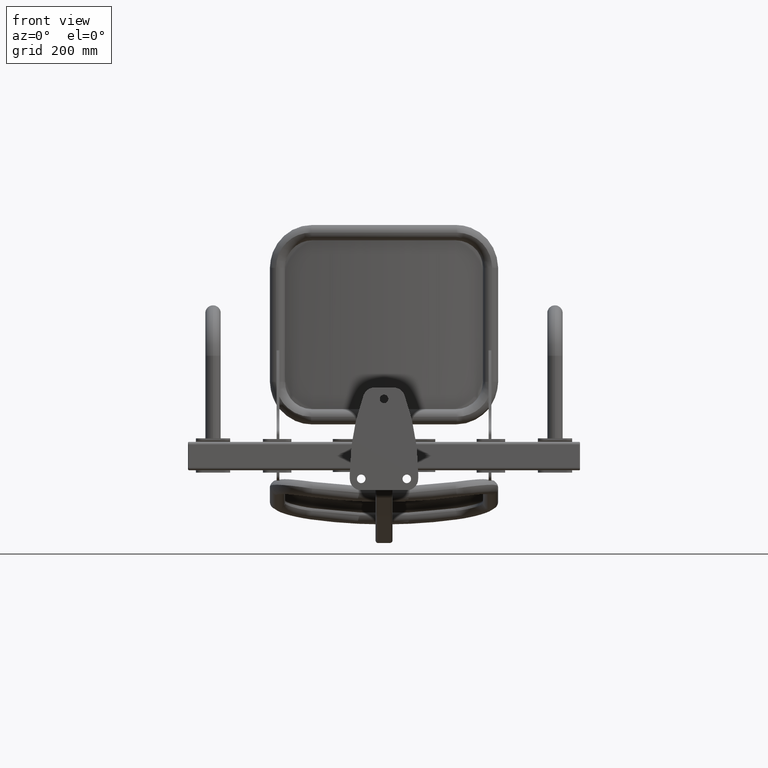
[diagram: clean part render]
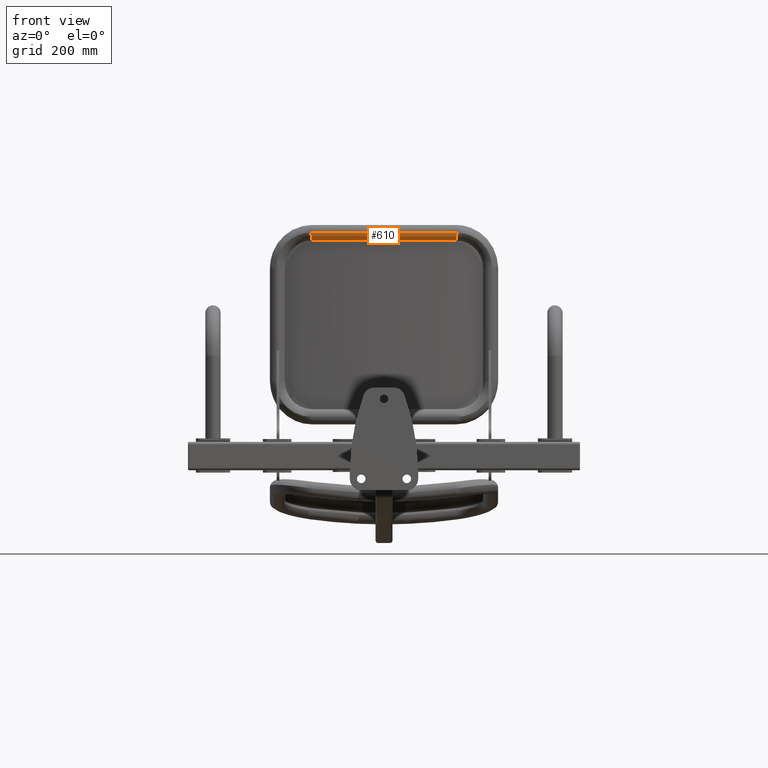
[diagram: same view with one face highlighted and labeled with its STEP entity id]
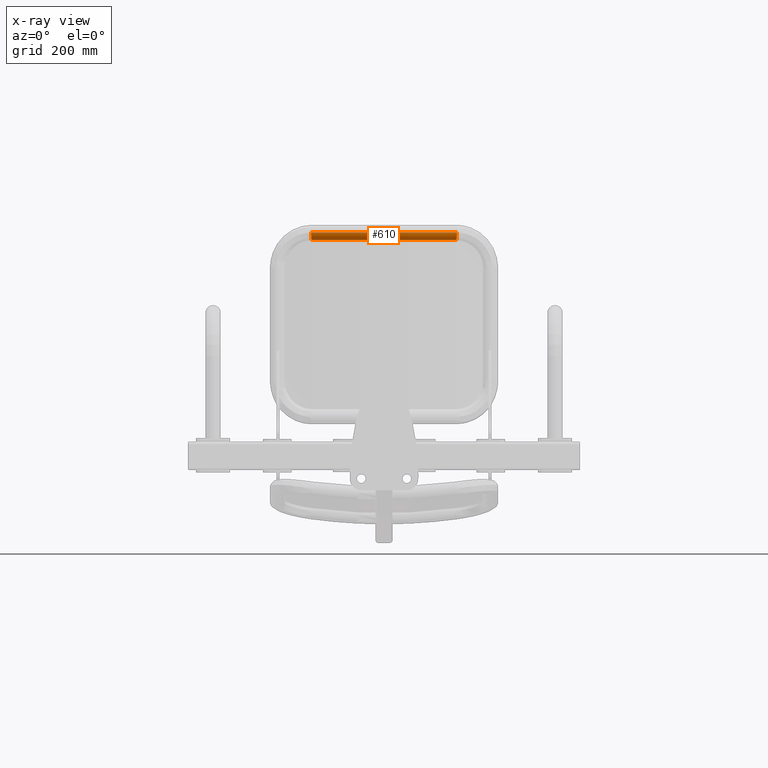
[diagram: x-ray of the same camera — body ghosted, the highlighted face saturated]
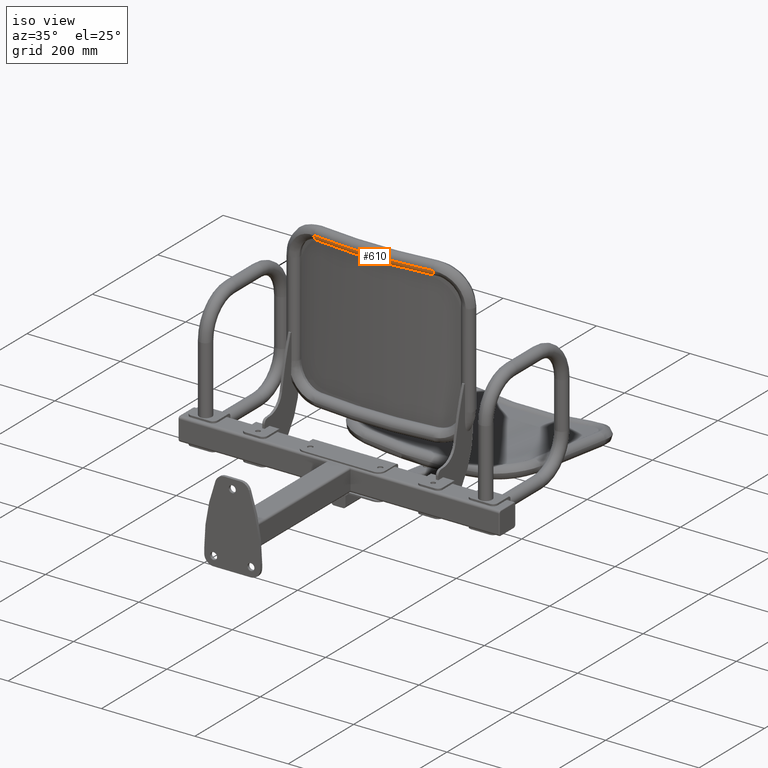
[diagram: same view with one face highlighted and labeled with its STEP entity id]
A machine part, front view. The second image highlights one B-rep face of the part: STEP entity #610.
The next image is the same camera in x-ray: the body ghosted, the highlighted face saturated — about 0% of this face is hidden behind the body in this view.
A second angle (iso view) of the same face is appended — the face is thin or edge-on in the first view.
In plain terms, the highlighted toroidal blend (fillet) surface has major radius 930 mm and minor (blend) radius 13.45 mm.
Its self-contained STEP definition (entity closure, byte-faithful):
#610 = ADVANCED_FACE ( 'NONE', ( #6414 ), #6413, .T. ) ;
#799 = CIRCLE ( 'NONE', #15535, 13.45000000000000300 ) ;
#802 = CIRCLE ( 'NONE', #15540, 13.44999999999999900 ) ;
#803 = CIRCLE ( 'NONE', #15539, 943.4500000000001600 ) ;
#2666 = EDGE_LOOP ( 'NONE', ( #6727, #6728, #6729, #6730 ) ) ;
#4079 = CARTESIAN_POINT ( 'NONE',  ( 0.0000000000000000000, 908.2400563727633200, 148.1000000000000200 ) ) ;
#4080 = DIRECTION ( 'NONE',  ( 0.0000000000000000000, 0.0000000000000000000, 1.000000000000000000 ) ) ;
#4081 = DIRECTION ( 'NONE',  ( 1.000000000000000000, 0.0000000000000000000, 0.0000000000000000000 ) ) ;
#5103 = DIRECTION ( 'NONE',  ( 0.0000000000000000000, 0.0000000000000000000, 1.000000000000000000 ) ) ;
#5255 = CARTESIAN_POINT ( 'NONE',  ( 0.0000000000000000000, 908.2400563727633200, 161.5500000000000100 ) ) ;
#5259 = DIRECTION ( 'NONE',  ( 1.000000000000000000, 0.0000000000000000000, 0.0000000000000000000 ) ) ;
#6413 = TOROIDAL_SURFACE ( 'NONE', #8609, 930.0000000000001100, 13.44999999999999900 ) ;
#6414 = FACE_OUTER_BOUND ( 'NONE', #2666, .T. ) ;
#6727 = ORIENTED_EDGE ( 'NONE', *, *, #15403, .T. ) ;
#6728 = ORIENTED_EDGE ( 'NONE', *, *, #15410, .F. ) ;
#6729 = ORIENTED_EDGE ( 'NONE', *, *, #15411, .F. ) ;
#6730 = ORIENTED_EDGE ( 'NONE', *, *, #15049, .T. ) ;
#7198 = CARTESIAN_POINT ( 'NONE',  ( 127.9271626772452800, -26.49656083518033600, 161.5500000000000100 ) ) ;
#7219 = CARTESIAN_POINT ( 'NONE',  ( 126.1034090729112600, -13.17078045312857700, 148.1000000000000200 ) ) ;
#7638 = CIRCLE ( 'NONE', #15483, 930.0000000000001100 ) ;
#8609 = AXIS2_PLACEMENT_3D ( 'NONE', #5255, #5103, #5259 ) ;
#11580 = VERTEX_POINT ( 'NONE', #14313 ) ;
#11585 = VERTEX_POINT ( 'NONE', #14318 ) ;
#11823 = VERTEX_POINT ( 'NONE', #7198 ) ;
#11844 = VERTEX_POINT ( 'NONE', #7219 ) ;
#12851 = CARTESIAN_POINT ( 'NONE',  ( 126.1034090729112600, -13.17078045312857900, 161.5500000000000100 ) ) ;
#12852 = DIRECTION ( 'NONE',  ( -0.9907643406730021200, -0.1355950635192585100, -1.748847136902782600E-017 ) ) ;
#12853 = DIRECTION ( 'NONE',  ( 0.1355950635192593500, -0.9907643406730017900, 0.0000000000000000000 ) ) ;
#12935 = CARTESIAN_POINT ( 'NONE',  ( 0.0000000000000000000, 908.2400563727633200, 161.5500000000000100 ) ) ;
#12936 = DIRECTION ( 'NONE',  ( 0.0000000000000000000, 0.0000000000000000000, 1.000000000000000000 ) ) ;
#12937 = DIRECTION ( 'NONE',  ( 1.000000000000000000, 0.0000000000000000000, 0.0000000000000000000 ) ) ;
#12940 = CARTESIAN_POINT ( 'NONE',  ( -126.1034090729112900, -13.17078045312858600, 161.5500000000000100 ) ) ;
#12941 = DIRECTION ( 'NONE',  ( -0.9907643406730017900, 0.1355950635192597900, 0.0000000000000000000 ) ) ;
#12942 = DIRECTION ( 'NONE',  ( -0.1355950635192593700, -0.9907643406730019000, 0.0000000000000000000 ) ) ;
#14313 = CARTESIAN_POINT ( 'NONE',  ( -127.9271626772453200, -26.49656083518042100, 161.5500000000000100 ) ) ;
#14318 = CARTESIAN_POINT ( 'NONE',  ( -126.1034090729112900, -13.17078045312858600, 148.1000000000000200 ) ) ;
#15049 = EDGE_CURVE ( 'NONE', #11585, #11844, #7638, .T. ) ;
#15403 = EDGE_CURVE ( 'NONE', #11844, #11823, #799, .T. ) ;
#15410 = EDGE_CURVE ( 'NONE', #11580, #11823, #803, .T. ) ;
#15411 = EDGE_CURVE ( 'NONE', #11585, #11580, #802, .T. ) ;
#15483 = AXIS2_PLACEMENT_3D ( 'NONE', #4079, #4080, #4081 ) ;
#15535 = AXIS2_PLACEMENT_3D ( 'NONE', #12851, #12852, #12853 ) ;
#15539 = AXIS2_PLACEMENT_3D ( 'NONE', #12935, #12936, #12937 ) ;
#15540 = AXIS2_PLACEMENT_3D ( 'NONE', #12940, #12941, #12942 ) ;